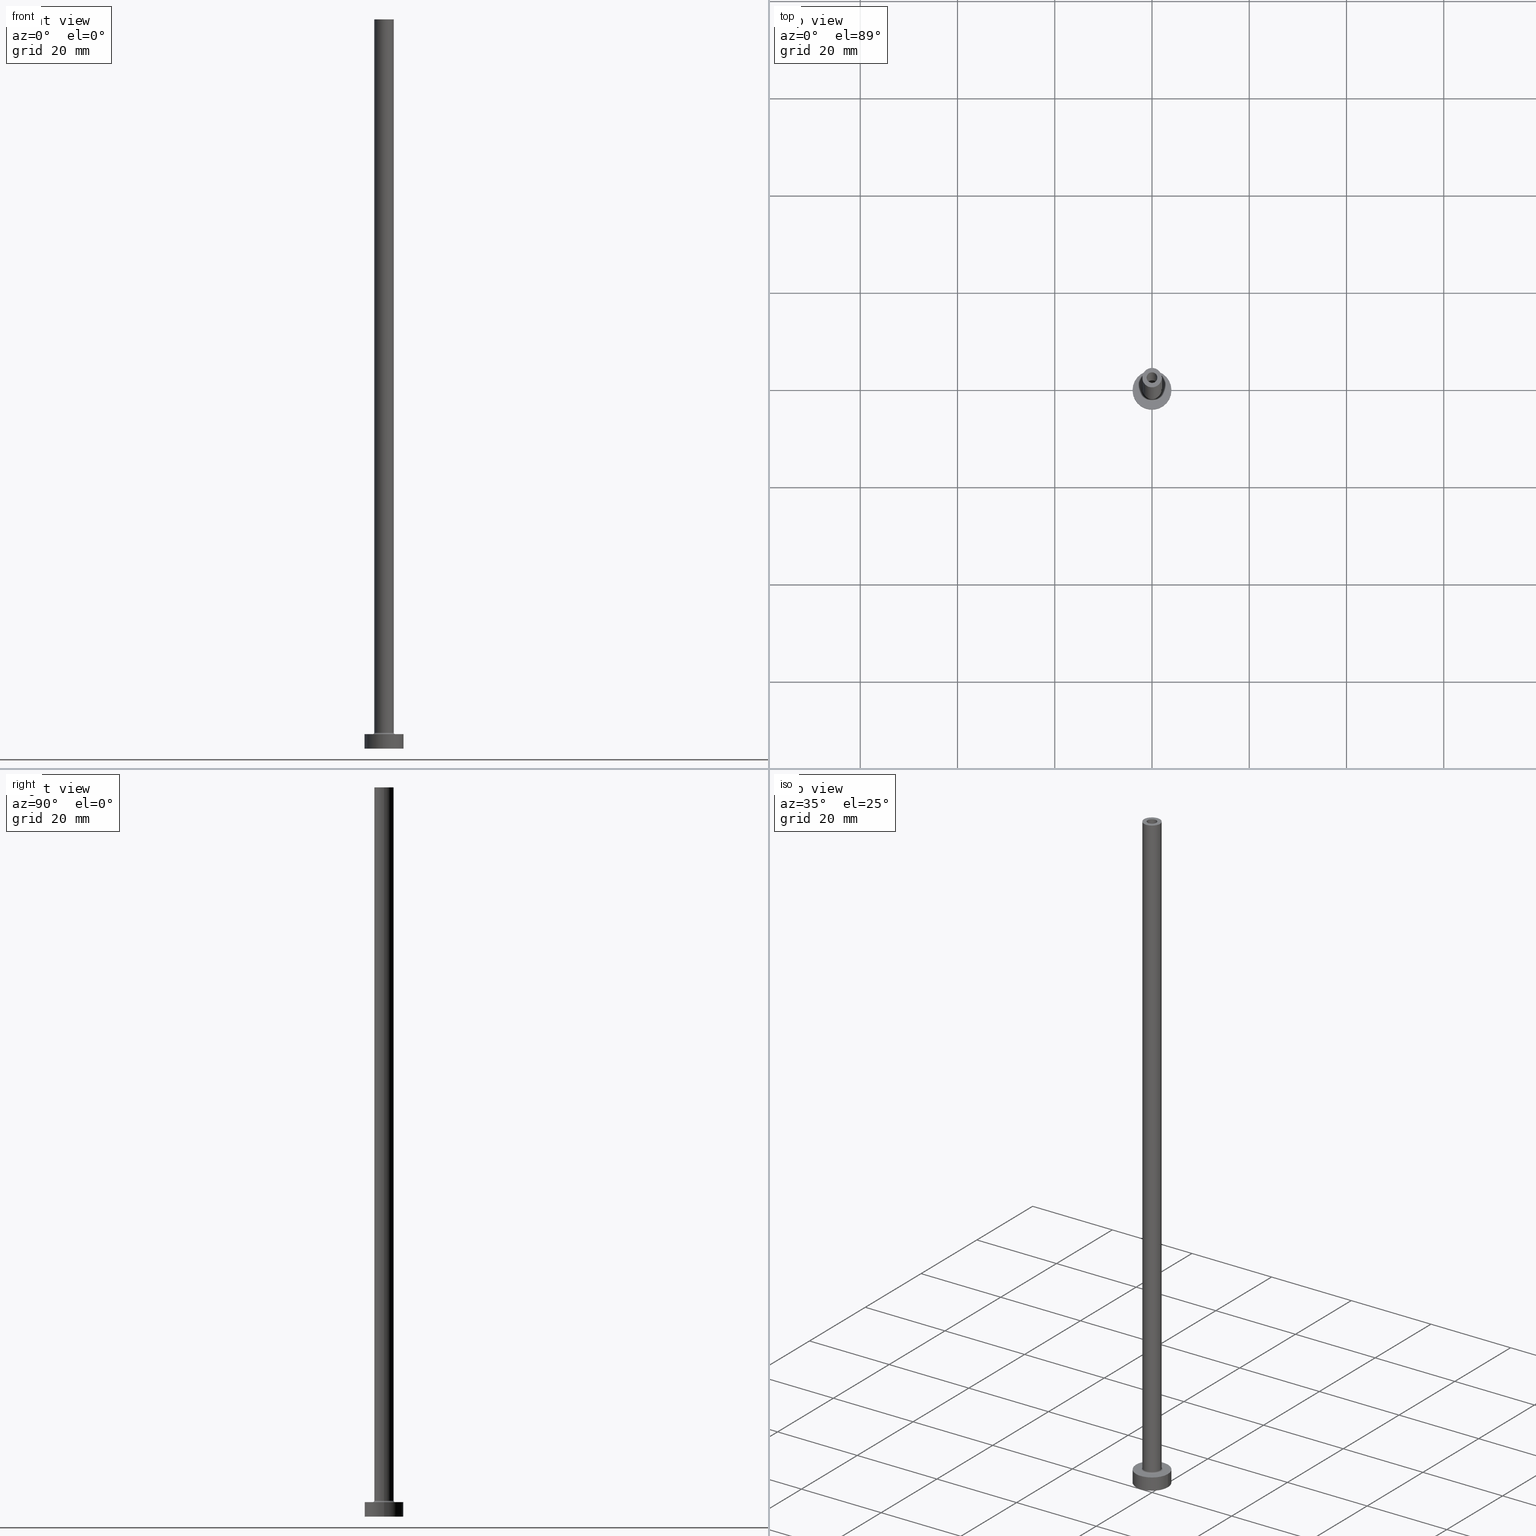
[diagram: canonical four-view strip — front | top / right | iso, engineering-drawing reading convention]
A machine part, canonical four-view strip (front | top / right | iso — engineering-drawing reading convention). The complete STEP part file that produces these views, byte-faithful:
ISO-10303-21;
HEADER;
FILE_DESCRIPTION (( 'STEP AP203' ),
    '1' );
FILE_NAME ('39bb.STEP',
    '2023-02-13T18:10:38',
    ( '' ),
    ( '' ),
    'SwSTEP 2.0',
    'SolidWorks 2019',
    '' );
FILE_SCHEMA (( 'CONFIG_CONTROL_DESIGN' ));
ENDSEC;

DATA;
#1 = EDGE_CURVE ( 'NONE', #459, #277, #3, .T. ) ;
#2 = AXIS2_PLACEMENT_3D ( 'NONE', #9, #287, #114 ) ;
#3 = LINE ( 'NONE', #67, #371 ) ;
#4 = CARTESIAN_POINT ( 'NONE',  ( 2.299999999999999822, 0.000000000000000000, 2.999999999999998668 ) ) ;
#5 = LINE ( 'NONE', #146, #202 ) ;
#6 = AXIS2_PLACEMENT_3D ( 'NONE', #116, #189, #187 ) ;
#7 = ORIENTED_EDGE ( 'NONE', *, *, #58, .T. ) ;
#8 = APPROVAL_ROLE ( '' ) ;
#9 = CARTESIAN_POINT ( 'NONE',  ( 0.000000000000000000, 0.000000000000000000, 3.000000000000000000 ) ) ;
#10 = CARTESIAN_POINT ( 'NONE',  ( 0.000000000000000000, 0.000000000000000000, 0.000000000000000000 ) ) ;
#11 = ORIENTED_EDGE ( 'NONE', *, *, #399, .T. ) ;
#12 = EDGE_CURVE ( 'NONE', #459, #448, #273, .T. ) ;
#13 = DIRECTION ( 'NONE',  ( 1.000000000000000000, 0.000000000000000000, 0.000000000000000000 ) ) ;
#14 = EDGE_LOOP ( 'NONE', ( #421, #225 ) ) ;
#15 = DIRECTION ( 'NONE',  ( 0.000000000000000000, 0.000000000000000000, 1.000000000000000000 ) ) ;
#16 = COORDINATED_UNIVERSAL_TIME_OFFSET ( 1, 0, .AHEAD. ) ;
#17 = ORIENTED_EDGE ( 'NONE', *, *, #399, .F. ) ;
#18 = VECTOR ( 'NONE', #347, 1000.000000000000000 ) ;
#19 = EDGE_CURVE ( 'NONE', #218, #312, #23, .T. ) ;
#20 = ORIENTED_EDGE ( 'NONE', *, *, #252, .F. ) ;
#21 = FACE_OUTER_BOUND ( 'NONE', #443, .T. ) ;
#22 = CARTESIAN_POINT ( 'NONE',  ( 0.000000000000000000, 0.000000000000000000, 3.000000000000000000 ) ) ;
#23 = LINE ( 'NONE', #270, #194 ) ;
#24 = CC_DESIGN_PERSON_AND_ORGANIZATION_ASSIGNMENT ( #428, #353, ( #423 ) ) ;
#25 = ORIENTED_EDGE ( 'NONE', *, *, #99, .F. ) ;
#26 = ORIENTED_EDGE ( 'NONE', *, *, #338, .F. ) ;
#27 = DATE_AND_TIME ( #55, #250 ) ;
#28 = CARTESIAN_POINT ( 'NONE',  ( 1.250000000000000000, 1.530808498934191571E-16, 118.5355339059327093 ) ) ;
#29 = ORIENTED_EDGE ( 'NONE', *, *, #364, .F. ) ;
#30 = APPROVAL_ROLE ( '' ) ;
#31 = PRODUCT_DEFINITION ( 'NEZN�M�', '', #49, #126 ) ;
#32 = CARTESIAN_POINT ( 'NONE',  ( -1.100000000000000089, 0.000000000000000000, 150.0000000000000000 ) ) ;
#33 = AXIS2_PLACEMENT_3D ( 'NONE', #420, #75, #210 ) ;
#34 = CYLINDRICAL_SURFACE ( 'NONE', #127, 4.000000000000000000 ) ;
#35 = ADVANCED_FACE ( 'NONE', ( #76, #354 ), #319, .T. ) ;
#36 = DIRECTION ( 'NONE',  ( -1.000000000000000000, 0.000000000000000000, 0.000000000000000000 ) ) ;
#37 = AXIS2_PLACEMENT_3D ( 'NONE', #22, #438, #228 ) ;
#38 = DIRECTION ( 'NONE',  ( 0.000000000000000000, 0.000000000000000000, -1.000000000000000000 ) ) ;
#39 = DIRECTION ( 'NONE',  ( 1.000000000000000000, 0.000000000000000000, -0.000000000000000000 ) ) ;
#40 = VECTOR ( 'NONE', #376, 1000.000000000000000 ) ;
#41 = ORIENTED_EDGE ( 'NONE', *, *, #295, .T. ) ;
#42 = AXIS2_PLACEMENT_3D ( 'NONE', #69, #98, #460 ) ;
#43 = DIRECTION ( 'NONE',  ( 1.224646799147353207E-16, 1.000000000000000000, -0.000000000000000000 ) ) ;
#44 = ORIENTED_EDGE ( 'NONE', *, *, #363, .F. ) ;
#45 = PERSON_AND_ORGANIZATION ( #344, #263 ) ;
#46 = EDGE_LOOP ( 'NONE', ( #313, #402, #201, #400 ) ) ;
#47 = DATE_TIME_ROLE ( 'creation_date' ) ;
#48 = DIRECTION ( 'NONE',  ( 0.000000000000000000, 0.000000000000000000, -1.000000000000000000 ) ) ;
#49 = PRODUCT_DEFINITION_FORMATION_WITH_SPECIFIED_SOURCE ( 'LIBOVOLN�', '', #423, .NOT_KNOWN. ) ;
#50 = EDGE_LOOP ( 'NONE', ( #25, #411 ) ) ;
#51 = PERSON_AND_ORGANIZATION ( #344, #263 ) ;
#52 = ORIENTED_EDGE ( 'NONE', *, *, #19, .T. ) ;
#53 = CARTESIAN_POINT ( 'NONE',  ( 2.000000000000000000, 2.449293598294706414E-16, 150.0000000000000000 ) ) ;
#54 = LINE ( 'NONE', #332, #109 ) ;
#55 = CALENDAR_DATE ( 2023, 13, 2 ) ;
#56 = CIRCLE ( 'NONE', #285, 2.000000000000000000 ) ;
#57 = PERSON_AND_ORGANIZATION_ROLE ( 'creator' ) ;
#58 = EDGE_CURVE ( 'NONE', #397, #158, #5, .T. ) ;
#59 = UNCERTAINTY_MEASURE_WITH_UNIT (LENGTH_MEASURE( 1.000000000000000082E-05 ), #81, 'distance_accuracy_value', 'NONE');
#60 = CIRCLE ( 'NONE', #304, 0.2999999999999999334 ) ;
#61 = DIRECTION ( 'NONE',  ( -0.000000000000000000, -0.000000000000000000, -1.000000000000000000 ) ) ;
#62 = EDGE_LOOP ( 'NONE', ( #296, #130, #242, #17 ) ) ;
#63 = DIRECTION ( 'NONE',  ( 1.000000000000000000, 0.000000000000000000, -0.000000000000000000 ) ) ;
#64 = AXIS2_PLACEMENT_3D ( 'NONE', #457, #111, #184 ) ;
#65 = CARTESIAN_POINT ( 'NONE',  ( 0.000000000000000000, 0.000000000000000000, 3.299999999999997158 ) ) ;
#66 = ADVANCED_FACE ( 'NONE', ( #396 ), #107, .F. ) ;
#67 = CARTESIAN_POINT ( 'NONE',  ( -1.250000000000000000, 0.000000000000000000, 118.5355339059327093 ) ) ;
#68 = PRODUCT_DEFINITION_SHAPE ( 'NONE', 'NONE',  #31 ) ;
#69 = CARTESIAN_POINT ( 'NONE',  ( 0.000000000000000000, 0.000000000000000000, 0.000000000000000000 ) ) ;
#70 = FACE_OUTER_BOUND ( 'NONE', #335, .T. ) ;
#71 = ORIENTED_EDGE ( 'NONE', *, *, #206, .F. ) ;
#72 = PLANE ( 'NONE',  #374 ) ;
#73 = CC_DESIGN_DATE_AND_TIME_ASSIGNMENT ( #318, #47, ( #31 ) ) ;
#74 = ORIENTED_EDGE ( 'NONE', *, *, #197, .T. ) ;
#75 = DIRECTION ( 'NONE',  ( 0.000000000000000000, 0.000000000000000000, 1.000000000000000000 ) ) ;
#76 = FACE_BOUND ( 'NONE', #129, .T. ) ;
#77 = CIRCLE ( 'NONE', #291, 1.250000000000000000 ) ;
#78 = AXIS2_PLACEMENT_3D ( 'NONE', #119, #223, #395 ) ;
#79 = DIRECTION ( 'NONE',  ( 0.000000000000000000, 0.000000000000000000, 1.000000000000000000 ) ) ;
#80 = DIRECTION ( 'NONE',  ( 1.000000000000000000, 0.000000000000000000, 0.000000000000000000 ) ) ;
#81 =( LENGTH_UNIT ( ) NAMED_UNIT ( * ) SI_UNIT ( .MILLI., .METRE. ) );
#82 = ORIENTED_EDGE ( 'NONE', *, *, #219, .T. ) ;
#83 = APPROVAL_DATE_TIME ( #110, #222 ) ;
#84 = EDGE_CURVE ( 'NONE', #455, #181, #233, .T. ) ;
#85 = APPLICATION_PROTOCOL_DEFINITION ( 'international standard', 'config_control_design', 1994, #446 ) ;
#86 = DIRECTION ( 'NONE',  ( 1.000000000000000000, 0.000000000000000000, 0.000000000000000000 ) ) ;
#87 = AXIS2_PLACEMENT_3D ( 'NONE', #404, #213, #331 ) ;
#88 = PERSON_AND_ORGANIZATION ( #344, #263 ) ;
#89 = EDGE_CURVE ( 'NONE', #293, #195, #141, .T. ) ;
#90 = AXIS2_PLACEMENT_3D ( 'NONE', #434, #326, #80 ) ;
#91 = CIRCLE ( 'NONE', #435, 1.100000000000000089 ) ;
#92 = ADVANCED_FACE ( 'NONE', ( #167 ), #207, .T. ) ;
#93 = EDGE_CURVE ( 'NONE', #312, #317, #122, .T. ) ;
#94 = CARTESIAN_POINT ( 'NONE',  ( 1.100000000000000089, 1.347111479062088503E-16, 150.0000000000000000 ) ) ;
#95 = DIRECTION ( 'NONE',  ( 0.000000000000000000, 0.000000000000000000, 1.000000000000000000 ) ) ;
#96 = ORIENTED_EDGE ( 'NONE', *, *, #165, .F. ) ;
#97 = ORIENTED_EDGE ( 'NONE', *, *, #408, .T. ) ;
#98 = DIRECTION ( 'NONE',  ( -0.000000000000000000, -0.000000000000000000, -1.000000000000000000 ) ) ;
#99 = EDGE_CURVE ( 'NONE', #317, #312, #382, .T. ) ;
#100 = CC_DESIGN_SECURITY_CLASSIFICATION ( #161, ( #49 ) ) ;
#101 = EDGE_LOOP ( 'NONE', ( #239, #44, #177, #144 ) ) ;
#102 = DIRECTION ( 'NONE',  ( 1.000000000000000000, 0.000000000000000000, 0.000000000000000000 ) ) ;
#103 = CC_DESIGN_PERSON_AND_ORGANIZATION_ASSIGNMENT ( #128, #437, ( #49 ) ) ;
#104 = EDGE_LOOP ( 'NONE', ( #142, #257, #180, #203 ) ) ;
#105 = DIRECTION ( 'NONE',  ( 0.000000000000000000, 0.000000000000000000, -1.000000000000000000 ) ) ;
#106 = DIRECTION ( 'NONE',  ( -0.000000000000000000, -0.000000000000000000, -1.000000000000000000 ) ) ;
#107 = TOROIDAL_SURFACE ( 'NONE', #64, 2.299999999999999822, 0.2999999999999999889 ) ;
#108 = CYLINDRICAL_SURFACE ( 'NONE', #78, 2.000000000000000000 ) ;
#109 = VECTOR ( 'NONE', #192, 1000.000000000000000 ) ;
#110 = DATE_AND_TIME ( #433, #300 ) ;
#111 = DIRECTION ( 'NONE',  ( 0.000000000000000000, 0.000000000000000000, 1.000000000000000000 ) ) ;
#112 = CARTESIAN_POINT ( 'NONE',  ( 0.000000000000000000, 0.000000000000000000, 114.9999999999999858 ) ) ;
#113 = DATE_AND_TIME ( #431, #427 ) ;
#114 = DIRECTION ( 'NONE',  ( 1.000000000000000000, 0.000000000000000000, 0.000000000000000000 ) ) ;
#115 = ORIENTED_EDGE ( 'NONE', *, *, #58, .F. ) ;
#116 = CARTESIAN_POINT ( 'NONE',  ( 0.000000000000000000, 0.000000000000000000, 150.0000000000000000 ) ) ;
#117 = EDGE_CURVE ( 'NONE', #195, #158, #416, .T. ) ;
#118 = CIRCLE ( 'NONE', #377, 1.250000000000000000 ) ;
#119 = CARTESIAN_POINT ( 'NONE',  ( 0.000000000000000000, 0.000000000000000000, 150.0000000000000000 ) ) ;
#120 = FACE_OUTER_BOUND ( 'NONE', #124, .T. ) ;
#121 = ORIENTED_EDGE ( 'NONE', *, *, #275, .T. ) ;
#122 = CIRCLE ( 'NONE', #412, 4.000000000000000000 ) ;
#123 = ADVANCED_FACE ( 'NONE', ( #375 ), #196, .T. ) ;
#124 = EDGE_LOOP ( 'NONE', ( #214, #414 ) ) ;
#125 = CARTESIAN_POINT ( 'NONE',  ( 0.000000000000000000, 0.000000000000000000, 114.9999999999999858 ) ) ;
#126 = DESIGN_CONTEXT ( 'detailed design', #446, 'design' ) ;
#127 = AXIS2_PLACEMENT_3D ( 'NONE', #315, #272, #136 ) ;
#128 = PERSON_AND_ORGANIZATION ( #344, #263 ) ;
#129 = EDGE_LOOP ( 'NONE', ( #322, #288 ) ) ;
#130 = ORIENTED_EDGE ( 'NONE', *, *, #206, .T. ) ;
#131 = CARTESIAN_POINT ( 'NONE',  ( -2.000000000000000000, 0.000000000000000000, 150.0000000000000000 ) ) ;
#132 = EDGE_CURVE ( 'NONE', #422, #244, #259, .T. ) ;
#133 = ORIENTED_EDGE ( 'NONE', *, *, #89, .F. ) ;
#134 = EDGE_CURVE ( 'NONE', #448, #451, #442, .T. ) ;
#135 = CARTESIAN_POINT ( 'NONE',  ( 2.000000000000000000, 2.449293598294706414E-16, 3.299999999999997158 ) ) ;
#136 = DIRECTION ( 'NONE',  ( -1.000000000000000000, 0.000000000000000000, 0.000000000000000000 ) ) ;
#137 = AXIS2_PLACEMENT_3D ( 'NONE', #316, #105, #36 ) ;
#138 = ORIENTED_EDGE ( 'NONE', *, *, #132, .T. ) ;
#139 = PLANE ( 'NONE',  #282 ) ;
#140 = DIRECTION ( 'NONE',  ( 0.000000000000000000, -1.000000000000000000, 0.000000000000000000 ) ) ;
#141 = LINE ( 'NONE', #216, #246 ) ;
#142 = ORIENTED_EDGE ( 'NONE', *, *, #12, .T. ) ;
#143 = CARTESIAN_POINT ( 'NONE',  ( -2.000000000000000000, 0.000000000000000000, 3.299999999999997158 ) ) ;
#144 = ORIENTED_EDGE ( 'NONE', *, *, #197, .F. ) ;
#145 =( NAMED_UNIT ( * ) SI_UNIT ( $, .STERADIAN. ) SOLID_ANGLE_UNIT ( ) );
#146 = CARTESIAN_POINT ( 'NONE',  ( -1.100000000000000089, 0.000000000000000000, 150.0000000000000000 ) ) ;
#147 = CIRCLE ( 'NONE', #6, 1.100000000000000089 ) ;
#148 = TOROIDAL_SURFACE ( 'NONE', #157, 2.299999999999999822, 0.2999999999999999889 ) ;
#149 = COORDINATED_UNIVERSAL_TIME_OFFSET ( 1, 0, .AHEAD. ) ;
#150 = DIRECTION ( 'NONE',  ( 0.000000000000000000, 0.000000000000000000, 1.000000000000000000 ) ) ;
#151 = DIRECTION ( 'NONE',  ( -0.000000000000000000, -0.000000000000000000, -1.000000000000000000 ) ) ;
#152 = CARTESIAN_POINT ( 'NONE',  ( 1.250000000000000000, 1.530808498934191571E-16, 114.9999999999999858 ) ) ;
#153 = CARTESIAN_POINT ( 'NONE',  ( 0.000000000000000000, 0.000000000000000000, 3.000000000000000000 ) ) ;
#154 = DIRECTION ( 'NONE',  ( 1.000000000000000000, 0.000000000000000000, 0.000000000000000000 ) ) ;
#155 = CARTESIAN_POINT ( 'NONE',  ( 1.250000000000000000, 1.530808498934191571E-16, 0.000000000000000000 ) ) ;
#156 = ADVANCED_FACE ( 'NONE', ( #166, #302 ), #306, .F. ) ;
#157 = AXIS2_PLACEMENT_3D ( 'NONE', #65, #204, #339 ) ;
#158 = VERTEX_POINT ( 'NONE', #255 ) ;
#159 = APPROVAL_DATE_TIME ( #27, #380 ) ;
#160 = FACE_BOUND ( 'NONE', #419, .T. ) ;
#161 = SECURITY_CLASSIFICATION ( '', '', #298 ) ;
#162 = ORIENTED_EDGE ( 'NONE', *, *, #310, .T. ) ;
#163 = CARTESIAN_POINT ( 'NONE',  ( 0.000000000000000000, 0.000000000000000000, 150.0000000000000000 ) ) ;
#164 = EDGE_LOOP ( 'NONE', ( #20, #96 ) ) ;
#165 = EDGE_CURVE ( 'NONE', #451, #277, #77, .T. ) ;
#166 = FACE_BOUND ( 'NONE', #274, .T. ) ;
#167 = FACE_OUTER_BOUND ( 'NONE', #454, .T. ) ;
#168 = AXIS2_PLACEMENT_3D ( 'NONE', #174, #308, #173 ) ;
#169 = CARTESIAN_POINT ( 'NONE',  ( -2.000000000000000000, 0.000000000000000000, 150.0000000000000000 ) ) ;
#170 = EDGE_CURVE ( 'NONE', #218, #231, #299, .T. ) ;
#171 = EDGE_LOOP ( 'NONE', ( #432, #162, #340, #418 ) ) ;
#172 = FACE_OUTER_BOUND ( 'NONE', #104, .T. ) ;
#173 = DIRECTION ( 'NONE',  ( 1.000000000000000000, 0.000000000000000000, 0.000000000000000000 ) ) ;
#174 = CARTESIAN_POINT ( 'NONE',  ( 0.000000000000000000, 0.000000000000000000, 150.0000000000000000 ) ) ;
#175 = AXIS2_PLACEMENT_3D ( 'NONE', #426, #150, #391 ) ;
#176 = DIRECTION ( 'NONE',  ( 1.000000000000000000, 0.000000000000000000, 0.000000000000000000 ) ) ;
#177 = ORIENTED_EDGE ( 'NONE', *, *, #378, .T. ) ;
#178 = DIRECTION ( 'NONE',  ( 1.000000000000000000, 0.000000000000000000, 0.000000000000000000 ) ) ;
#179 = LINE ( 'NONE', #131, #386 ) ;
#180 = ORIENTED_EDGE ( 'NONE', *, *, #165, .T. ) ;
#181 = VERTEX_POINT ( 'NONE', #367 ) ;
#182 = CALENDAR_DATE ( 2023, 13, 2 ) ;
#183 = COORDINATED_UNIVERSAL_TIME_OFFSET ( 1, 0, .AHEAD. ) ;
#184 = DIRECTION ( 'NONE',  ( 1.000000000000000000, 0.000000000000000000, 0.000000000000000000 ) ) ;
#185 = CARTESIAN_POINT ( 'NONE',  ( 0.000000000000000000, 0.000000000000000000, 114.9999999999999858 ) ) ;
#186 = CIRCLE ( 'NONE', #441, 2.000000000000000000 ) ;
#187 = DIRECTION ( 'NONE',  ( 1.000000000000000000, 0.000000000000000000, 0.000000000000000000 ) ) ;
#188 = APPROVAL_STATUS ( 'not_yet_approved' ) ;
#189 = DIRECTION ( 'NONE',  ( 0.000000000000000000, 0.000000000000000000, 1.000000000000000000 ) ) ;
#190 = CARTESIAN_POINT ( 'NONE',  ( 0.000000000000000000, 0.000000000000000000, 150.0000000000000000 ) ) ;
#191 = APPROVAL_PERSON_ORGANIZATION ( #283, #447, #8 ) ;
#192 = DIRECTION ( 'NONE',  ( -0.000000000000000000, -0.000000000000000000, -1.000000000000000000 ) ) ;
#193 = PERSON_AND_ORGANIZATION ( #344, #263 ) ;
#194 = VECTOR ( 'NONE', #106, 1000.000000000000000 ) ;
#195 = VERTEX_POINT ( 'NONE', #254 ) ;
#196 = CYLINDRICAL_SURFACE ( 'NONE', #453, 2.000000000000000000 ) ;
#197 = EDGE_CURVE ( 'NONE', #181, #455, #329, .T. ) ;
#198 = AXIS2_PLACEMENT_3D ( 'NONE', #190, #48, #280 ) ;
#199 = CARTESIAN_POINT ( 'NONE',  ( 0.000000000000000000, 0.000000000000000000, 0.000000000000000000 ) ) ;
#200 = DIRECTION ( 'NONE',  ( -1.000000000000000000, 0.000000000000000000, 0.000000000000000000 ) ) ;
#201 = ORIENTED_EDGE ( 'NONE', *, *, #84, .F. ) ;
#202 = VECTOR ( 'NONE', #429, 1000.000000000000000 ) ;
#203 = ORIENTED_EDGE ( 'NONE', *, *, #1, .F. ) ;
#204 = DIRECTION ( 'NONE',  ( 0.000000000000000000, 0.000000000000000000, 1.000000000000000000 ) ) ;
#205 = ADVANCED_FACE ( 'NONE', ( #21 ), #327, .F. ) ;
#206 = EDGE_CURVE ( 'NONE', #422, #356, #54, .T. ) ;
#207 = CYLINDRICAL_SURFACE ( 'NONE', #37, 4.000000000000000000 ) ;
#208 = CC_DESIGN_APPROVAL ( #380, ( #161 ) ) ;
#209 = DIRECTION ( 'NONE',  ( -1.000000000000000000, 0.000000000000000000, 0.000000000000000000 ) ) ;
#210 = DIRECTION ( 'NONE',  ( 1.000000000000000000, 0.000000000000000000, 0.000000000000000000 ) ) ;
#211 = EDGE_LOOP ( 'NONE', ( #71, #29, #11, #97 ) ) ;
#212 = CARTESIAN_POINT ( 'NONE',  ( -4.000000000000000000, 0.000000000000000000, 0.000000000000000000 ) ) ;
#213 = DIRECTION ( 'NONE',  ( 0.000000000000000000, 0.000000000000000000, -1.000000000000000000 ) ) ;
#214 = ORIENTED_EDGE ( 'NONE', *, *, #338, .T. ) ;
#215 = CARTESIAN_POINT ( 'NONE',  ( -4.000000000000000000, 0.000000000000000000, 3.000000000000000000 ) ) ;
#216 = CARTESIAN_POINT ( 'NONE',  ( 1.100000000000000089, 1.347111479062088503E-16, 150.0000000000000000 ) ) ;
#217 = AXIS2_PLACEMENT_3D ( 'NONE', #387, #456, #247 ) ;
#218 = VERTEX_POINT ( 'NONE', #385 ) ;
#219 = EDGE_CURVE ( 'NONE', #293, #397, #372, .T. ) ;
#220 = APPLICATION_PROTOCOL_DEFINITION ( 'international standard', 'config_control_design', 1994, #379 ) ;
#221 = AXIS2_PLACEMENT_3D ( 'NONE', #125, #407, #232 ) ;
#222 = APPROVAL ( #188, 'NEUR�EN�' ) ;
#223 = DIRECTION ( 'NONE',  ( -0.000000000000000000, -0.000000000000000000, -1.000000000000000000 ) ) ;
#224 = ADVANCED_FACE ( 'NONE', ( #160, #120 ), #139, .T. ) ;
#225 = ORIENTED_EDGE ( 'NONE', *, *, #310, .F. ) ;
#226 = CARTESIAN_POINT ( 'NONE',  ( -4.000000000000000000, 0.000000000000000000, 3.000000000000000000 ) ) ;
#227 = APPROVAL_ROLE ( '' ) ;
#228 = DIRECTION ( 'NONE',  ( -1.000000000000000000, 0.000000000000000000, 0.000000000000000000 ) ) ;
#229 = LOCAL_TIME ( 19, 10, 38.00000000000000000, #439 ) ;
#230 = PERSON_AND_ORGANIZATION_ROLE ( 'classification_officer' ) ;
#231 = VERTEX_POINT ( 'NONE', #226 ) ;
#232 = DIRECTION ( 'NONE',  ( 1.000000000000000000, 0.000000000000000000, 0.000000000000000000 ) ) ;
#233 = CIRCLE ( 'NONE', #2, 2.299999999999999822 ) ;
#234 = ADVANCED_FACE ( 'NONE', ( #346 ), #440, .F. ) ;
#235 = CARTESIAN_POINT ( 'NONE',  ( 0.000000000000000000, 0.000000000000000000, 150.0000000000000000 ) ) ;
#236 = PRODUCT_RELATED_PRODUCT_CATEGORY ( 'detail', '', ( #423 ) ) ;
#237 = AXIS2_PLACEMENT_3D ( 'NONE', #163, #301, #337 ) ;
#238 = CIRCLE ( 'NONE', #33, 4.000000000000000000 ) ;
#239 = ORIENTED_EDGE ( 'NONE', *, *, #384, .F. ) ;
#240 = LINE ( 'NONE', #215, #18 ) ;
#241 = FACE_BOUND ( 'NONE', #164, .T. ) ;
#242 = ORIENTED_EDGE ( 'NONE', *, *, #363, .T. ) ;
#243 = CARTESIAN_POINT ( 'NONE',  ( 0.000000000000000000, 0.000000000000000000, 3.299999999999997158 ) ) ;
#244 = VERTEX_POINT ( 'NONE', #169 ) ;
#245 = DIRECTION ( 'NONE',  ( 0.000000000000000000, 0.000000000000000000, -1.000000000000000000 ) ) ;
#246 = VECTOR ( 'NONE', #413, 1000.000000000000000 ) ;
#247 = DIRECTION ( 'NONE',  ( 1.000000000000000000, 0.000000000000000000, 0.000000000000000000 ) ) ;
#248 = ORIENTED_EDGE ( 'NONE', *, *, #170, .F. ) ;
#249 = DIRECTION ( 'NONE',  ( 1.000000000000000000, 0.000000000000000000, -0.000000000000000000 ) ) ;
#250 = LOCAL_TIME ( 19, 10, 38.00000000000000000, #261 ) ;
#251 = DIRECTION ( 'NONE',  ( 0.000000000000000000, 0.000000000000000000, 1.000000000000000000 ) ) ;
#252 = EDGE_CURVE ( 'NONE', #277, #451, #262, .T. ) ;
#253 =( NAMED_UNIT ( * ) PLANE_ANGLE_UNIT ( ) SI_UNIT ( $, .RADIAN. ) );
#254 = CARTESIAN_POINT ( 'NONE',  ( 1.100000000000000089, 1.347111479062088503E-16, 114.9999999999999858 ) ) ;
#255 = CARTESIAN_POINT ( 'NONE',  ( -1.100000000000000089, 0.000000000000000000, 114.9999999999999858 ) ) ;
#256 = APPROVAL_DATE_TIME ( #113, #447 ) ;
#257 = ORIENTED_EDGE ( 'NONE', *, *, #134, .T. ) ;
#258 = CARTESIAN_POINT ( 'NONE',  ( 0.000000000000000000, 0.000000000000000000, 0.000000000000000000 ) ) ;
#259 = CIRCLE ( 'NONE', #237, 2.000000000000000000 ) ;
#260 = ORIENTED_EDGE ( 'NONE', *, *, #19, .F. ) ;
#261 = COORDINATED_UNIVERSAL_TIME_OFFSET ( 1, 0, .AHEAD. ) ;
#262 = CIRCLE ( 'NONE', #42, 1.250000000000000000 ) ;
#263 = ORGANIZATION ( 'NEUR�EN�', 'NEUR�EN�', '' ) ;
#264 = APPROVAL_STATUS ( 'not_yet_approved' ) ;
#265 = ADVANCED_FACE ( 'NONE', ( #172 ), #383, .F. ) ;
#266 = ADVANCED_BREP_SHAPE_REPRESENTATION ( '39bb', ( #289, #330 ), #271 ) ;
#267 = DATE_TIME_ROLE ( 'classification_date' ) ;
#268 = CC_DESIGN_DATE_AND_TIME_ASSIGNMENT ( #294, #267, ( #161 ) ) ;
#269 = VERTEX_POINT ( 'NONE', #143 ) ;
#270 = CARTESIAN_POINT ( 'NONE',  ( 4.000000000000000000, 4.898587196589412829E-16, 3.000000000000000000 ) ) ;
#271 =( GEOMETRIC_REPRESENTATION_CONTEXT ( 3 ) GLOBAL_UNCERTAINTY_ASSIGNED_CONTEXT ( ( #59 ) ) GLOBAL_UNIT_ASSIGNED_CONTEXT ( ( #81, #253, #145 ) ) REPRESENTATION_CONTEXT ( 'NONE', 'WORKASPACE' ) );
#272 = DIRECTION ( 'NONE',  ( -0.000000000000000000, -0.000000000000000000, -1.000000000000000000 ) ) ;
#273 = CIRCLE ( 'NONE', #303, 1.250000000000000000 ) ;
#274 = EDGE_LOOP ( 'NONE', ( #121, #369 ) ) ;
#275 = EDGE_CURVE ( 'NONE', #158, #195, #91, .T. ) ;
#276 = CARTESIAN_POINT ( 'NONE',  ( 0.000000000000000000, 0.000000000000000000, 0.000000000000000000 ) ) ;
#277 = VERTEX_POINT ( 'NONE', #343 ) ;
#278 = FACE_OUTER_BOUND ( 'NONE', #171, .T. ) ;
#279 = CARTESIAN_POINT ( 'NONE',  ( -2.299999999999999822, 2.816687638038912056E-16, 3.299999999999997158 ) ) ;
#280 = DIRECTION ( 'NONE',  ( -1.000000000000000000, 0.000000000000000000, 0.000000000000000000 ) ) ;
#281 = ORIENTED_EDGE ( 'NONE', *, *, #275, .F. ) ;
#282 = AXIS2_PLACEMENT_3D ( 'NONE', #334, #373, #63 ) ;
#283 = PERSON_AND_ORGANIZATION ( #344, #263 ) ;
#284 = AXIS2_PLACEMENT_3D ( 'NONE', #185, #321, #249 ) ;
#285 = AXIS2_PLACEMENT_3D ( 'NONE', #243, #350, #178 ) ;
#286 = EDGE_LOOP ( 'NONE', ( #388, #138 ) ) ;
#287 = DIRECTION ( 'NONE',  ( -0.000000000000000000, -0.000000000000000000, -1.000000000000000000 ) ) ;
#288 = ORIENTED_EDGE ( 'NONE', *, *, #219, .F. ) ;
#289 = MANIFOLD_SOLID_BREP ( 'Odebrat vysunut�m4', #405 ) ;
#290 = DIRECTION ( 'NONE',  ( 1.000000000000000000, 0.000000000000000000, 0.000000000000000000 ) ) ;
#291 = AXIS2_PLACEMENT_3D ( 'NONE', #10, #151, #13 ) ;
#292 = CIRCLE ( 'NONE', #217, 2.000000000000000000 ) ;
#293 = VERTEX_POINT ( 'NONE', #94 ) ;
#294 = DATE_AND_TIME ( #336, #229 ) ;
#295 = EDGE_CURVE ( 'NONE', #231, #317, #240, .T. ) ;
#296 = ORIENTED_EDGE ( 'NONE', *, *, #132, .F. ) ;
#297 = CARTESIAN_POINT ( 'NONE',  ( 0.000000000000000000, 0.000000000000000000, 0.000000000000000000 ) ) ;
#298 = SECURITY_CLASSIFICATION_LEVEL ( 'unclassified' ) ;
#299 = CIRCLE ( 'NONE', #360, 4.000000000000000000 ) ;
#300 = LOCAL_TIME ( 19, 10, 38.00000000000000000, #183 ) ;
#301 = DIRECTION ( 'NONE',  ( 0.000000000000000000, 0.000000000000000000, 1.000000000000000000 ) ) ;
#302 = FACE_OUTER_BOUND ( 'NONE', #14, .T. ) ;
#303 = AXIS2_PLACEMENT_3D ( 'NONE', #112, #359, #86 ) ;
#304 = AXIS2_PLACEMENT_3D ( 'NONE', #381, #140, #305 ) ;
#305 = DIRECTION ( 'NONE',  ( 0.000000000000000000, 0.000000000000000000, -1.000000000000000000 ) ) ;
#306 = PLANE ( 'NONE',  #284 ) ;
#307 = CARTESIAN_POINT ( 'NONE',  ( 0.000000000000000000, 0.000000000000000000, 114.9999999999999858 ) ) ;
#308 = DIRECTION ( 'NONE',  ( 0.000000000000000000, 0.000000000000000000, 1.000000000000000000 ) ) ;
#309 = ORIENTED_EDGE ( 'NONE', *, *, #84, .T. ) ;
#310 = EDGE_CURVE ( 'NONE', #448, #459, #118, .T. ) ;
#311 = CARTESIAN_POINT ( 'NONE',  ( 4.000000000000000000, 4.898587196589412829E-16, 0.000000000000000000 ) ) ;
#312 = VERTEX_POINT ( 'NONE', #311 ) ;
#313 = ORIENTED_EDGE ( 'NONE', *, *, #408, .F. ) ;
#314 = LOCAL_TIME ( 19, 10, 38.00000000000000000, #16 ) ;
#315 = CARTESIAN_POINT ( 'NONE',  ( 0.000000000000000000, 0.000000000000000000, 3.000000000000000000 ) ) ;
#316 = CARTESIAN_POINT ( 'NONE',  ( 0.000000000000000000, 0.000000000000000000, 118.5355339059327093 ) ) ;
#317 = VERTEX_POINT ( 'NONE', #212 ) ;
#318 = DATE_AND_TIME ( #182, #314 ) ;
#319 = PLANE ( 'NONE',  #175 ) ;
#320 = APPROVAL_STATUS ( 'not_yet_approved' ) ;
#321 = DIRECTION ( 'NONE',  ( 0.000000000000000000, 0.000000000000000000, 1.000000000000000000 ) ) ;
#322 = ORIENTED_EDGE ( 'NONE', *, *, #430, .F. ) ;
#323 = FACE_OUTER_BOUND ( 'NONE', #211, .T. ) ;
#324 = ADVANCED_FACE ( 'NONE', ( #70 ), #34, .T. ) ;
#325 = PERSON_AND_ORGANIZATION_ROLE ( 'creator' ) ;
#326 = DIRECTION ( 'NONE',  ( -0.000000000000000000, -0.000000000000000000, -1.000000000000000000 ) ) ;
#327 = CYLINDRICAL_SURFACE ( 'NONE', #87, 1.100000000000000089 ) ;
#328 = DIRECTION ( 'NONE',  ( 1.000000000000000000, 0.000000000000000000, 0.000000000000000000 ) ) ;
#329 = CIRCLE ( 'NONE', #90, 2.299999999999999822 ) ;
#330 = AXIS2_PLACEMENT_3D ( 'NONE', #258, #79, #394 ) ;
#331 = DIRECTION ( 'NONE',  ( -1.000000000000000000, 0.000000000000000000, 0.000000000000000000 ) ) ;
#332 = CARTESIAN_POINT ( 'NONE',  ( 2.000000000000000000, 2.449293598294706414E-16, 150.0000000000000000 ) ) ;
#333 = PERSON_AND_ORGANIZATION ( #344, #263 ) ;
#334 = CARTESIAN_POINT ( 'NONE',  ( 0.000000000000000000, 0.000000000000000000, 3.000000000000000000 ) ) ;
#335 = EDGE_LOOP ( 'NONE', ( #260, #26, #41, #365 ) ) ;
#336 = CALENDAR_DATE ( 2023, 13, 2 ) ;
#337 = DIRECTION ( 'NONE',  ( 1.000000000000000000, 0.000000000000000000, 0.000000000000000000 ) ) ;
#338 = EDGE_CURVE ( 'NONE', #231, #218, #238, .T. ) ;
#339 = DIRECTION ( 'NONE',  ( 1.000000000000000000, 0.000000000000000000, 0.000000000000000000 ) ) ;
#340 = ORIENTED_EDGE ( 'NONE', *, *, #1, .T. ) ;
#341 = APPROVAL_PERSON_ORGANIZATION ( #88, #380, #30 ) ;
#342 = APPROVAL_PERSON_ORGANIZATION ( #51, #222, #227 ) ;
#343 = CARTESIAN_POINT ( 'NONE',  ( -1.250000000000000000, 0.000000000000000000, 0.000000000000000000 ) ) ;
#344 = PERSON ( 'NEUR�EN�', 'NEUR�EN�', 'NEUR�EN�', ('NEUR�EN�'), ('NEUR�EN�'), ('NEUR�EN�') ) ;
#345 = CARTESIAN_POINT ( 'NONE',  ( 0.000000000000000000, 0.000000000000000000, 114.9999999999999858 ) ) ;
#346 = FACE_OUTER_BOUND ( 'NONE', #406, .T. ) ;
#347 = DIRECTION ( 'NONE',  ( -0.000000000000000000, -0.000000000000000000, -1.000000000000000000 ) ) ;
#348 = ADVANCED_FACE ( 'NONE', ( #278 ), #415, .F. ) ;
#349 = CIRCLE ( 'NONE', #362, 0.2999999999999999334 ) ;
#350 = DIRECTION ( 'NONE',  ( 0.000000000000000000, 0.000000000000000000, 1.000000000000000000 ) ) ;
#351 = ORIENTED_EDGE ( 'NONE', *, *, #430, .T. ) ;
#352 = ORIENTED_EDGE ( 'NONE', *, *, #295, .F. ) ;
#353 = PERSON_AND_ORGANIZATION_ROLE ( 'design_owner' ) ;
#354 = FACE_OUTER_BOUND ( 'NONE', #286, .T. ) ;
#355 = AXIS2_PLACEMENT_3D ( 'NONE', #297, #403, #328 ) ;
#356 = VERTEX_POINT ( 'NONE', #135 ) ;
#357 = DIRECTION ( 'NONE',  ( 0.000000000000000000, 0.000000000000000000, 1.000000000000000000 ) ) ;
#358 = ADVANCED_FACE ( 'NONE', ( #241, #389 ), #72, .F. ) ;
#359 = DIRECTION ( 'NONE',  ( 0.000000000000000000, 0.000000000000000000, 1.000000000000000000 ) ) ;
#360 = AXIS2_PLACEMENT_3D ( 'NONE', #153, #251, #290 ) ;
#361 = DIRECTION ( 'NONE',  ( -0.000000000000000000, -0.000000000000000000, -1.000000000000000000 ) ) ;
#362 = AXIS2_PLACEMENT_3D ( 'NONE', #279, #43, #424 ) ;
#363 = EDGE_CURVE ( 'NONE', #356, #269, #56, .T. ) ;
#364 = EDGE_CURVE ( 'NONE', #244, #422, #292, .T. ) ;
#365 = ORIENTED_EDGE ( 'NONE', *, *, #99, .T. ) ;
#366 = CARTESIAN_POINT ( 'NONE',  ( -1.250000000000000000, 0.000000000000000000, 114.9999999999999858 ) ) ;
#367 = CARTESIAN_POINT ( 'NONE',  ( -2.299999999999999822, 2.816687638038912056E-16, 2.999999999999998668 ) ) ;
#368 = CC_DESIGN_PERSON_AND_ORGANIZATION_ASSIGNMENT ( #333, #230, ( #161 ) ) ;
#369 = ORIENTED_EDGE ( 'NONE', *, *, #117, .T. ) ;
#370 = DIRECTION ( 'NONE',  ( 1.000000000000000000, 0.000000000000000000, 0.000000000000000000 ) ) ;
#371 = VECTOR ( 'NONE', #38, 1000.000000000000000 ) ;
#372 = CIRCLE ( 'NONE', #168, 1.100000000000000089 ) ;
#373 = DIRECTION ( 'NONE',  ( 0.000000000000000000, 0.000000000000000000, 1.000000000000000000 ) ) ;
#374 = AXIS2_PLACEMENT_3D ( 'NONE', #276, #417, #39 ) ;
#375 = FACE_OUTER_BOUND ( 'NONE', #62, .T. ) ;
#376 = DIRECTION ( 'NONE',  ( 0.000000000000000000, 0.000000000000000000, -1.000000000000000000 ) ) ;
#377 = AXIS2_PLACEMENT_3D ( 'NONE', #345, #452, #176 ) ;
#378 = EDGE_CURVE ( 'NONE', #356, #455, #60, .T. ) ;
#379 = APPLICATION_CONTEXT ( 'configuration controlled 3d designs of mechanical parts and assemblies' ) ;
#380 = APPROVAL ( #264, 'NEUR�EN�' ) ;
#381 = CARTESIAN_POINT ( 'NONE',  ( 2.299999999999999822, 0.000000000000000000, 3.299999999999997158 ) ) ;
#382 = CIRCLE ( 'NONE', #355, 4.000000000000000000 ) ;
#383 = CYLINDRICAL_SURFACE ( 'NONE', #137, 1.250000000000000000 ) ;
#384 = EDGE_CURVE ( 'NONE', #269, #181, #349, .T. ) ;
#385 = CARTESIAN_POINT ( 'NONE',  ( 4.000000000000000000, 4.898587196589412829E-16, 3.000000000000000000 ) ) ;
#386 = VECTOR ( 'NONE', #361, 1000.000000000000000 ) ;
#387 = CARTESIAN_POINT ( 'NONE',  ( 0.000000000000000000, 0.000000000000000000, 150.0000000000000000 ) ) ;
#388 = ORIENTED_EDGE ( 'NONE', *, *, #364, .T. ) ;
#389 = FACE_OUTER_BOUND ( 'NONE', #50, .T. ) ;
#390 = FACE_OUTER_BOUND ( 'NONE', #101, .T. ) ;
#391 = DIRECTION ( 'NONE',  ( 1.000000000000000000, 0.000000000000000000, -0.000000000000000000 ) ) ;
#392 = ADVANCED_FACE ( 'NONE', ( #390 ), #148, .F. ) ;
#393 = CC_DESIGN_APPROVAL ( #222, ( #31 ) ) ;
#394 = DIRECTION ( 'NONE',  ( 1.000000000000000000, 0.000000000000000000, 0.000000000000000000 ) ) ;
#395 = DIRECTION ( 'NONE',  ( -1.000000000000000000, 0.000000000000000000, 0.000000000000000000 ) ) ;
#396 = FACE_OUTER_BOUND ( 'NONE', #46, .T. ) ;
#397 = VERTEX_POINT ( 'NONE', #32 ) ;
#398 = CARTESIAN_POINT ( 'NONE',  ( 0.000000000000000000, 0.000000000000000000, 3.299999999999997158 ) ) ;
#399 = EDGE_CURVE ( 'NONE', #244, #269, #179, .T. ) ;
#400 = ORIENTED_EDGE ( 'NONE', *, *, #378, .F. ) ;
#401 = CC_DESIGN_PERSON_AND_ORGANIZATION_ASSIGNMENT ( #45, #325, ( #31 ) ) ;
#402 = ORIENTED_EDGE ( 'NONE', *, *, #384, .T. ) ;
#403 = DIRECTION ( 'NONE',  ( 0.000000000000000000, 0.000000000000000000, 1.000000000000000000 ) ) ;
#404 = CARTESIAN_POINT ( 'NONE',  ( 0.000000000000000000, 0.000000000000000000, 150.0000000000000000 ) ) ;
#405 = CLOSED_SHELL ( 'NONE', ( #234, #265, #66, #123, #92, #324, #224, #358, #458, #35, #392, #348, #156, #205 ) ) ;
#406 = EDGE_LOOP ( 'NONE', ( #351, #445, #281, #115 ) ) ;
#407 = DIRECTION ( 'NONE',  ( 0.000000000000000000, 0.000000000000000000, 1.000000000000000000 ) ) ;
#408 = EDGE_CURVE ( 'NONE', #269, #356, #186, .T. ) ;
#409 = CC_DESIGN_APPROVAL ( #447, ( #49 ) ) ;
#410 = SHAPE_DEFINITION_REPRESENTATION ( #68, #266 ) ;
#411 = ORIENTED_EDGE ( 'NONE', *, *, #93, .F. ) ;
#412 = AXIS2_PLACEMENT_3D ( 'NONE', #199, #15, #154 ) ;
#413 = DIRECTION ( 'NONE',  ( 0.000000000000000000, 0.000000000000000000, -1.000000000000000000 ) ) ;
#414 = ORIENTED_EDGE ( 'NONE', *, *, #170, .T. ) ;
#415 = CYLINDRICAL_SURFACE ( 'NONE', #444, 1.250000000000000000 ) ;
#416 = CIRCLE ( 'NONE', #221, 1.100000000000000089 ) ;
#417 = DIRECTION ( 'NONE',  ( 0.000000000000000000, 0.000000000000000000, 1.000000000000000000 ) ) ;
#418 = ORIENTED_EDGE ( 'NONE', *, *, #252, .T. ) ;
#419 = EDGE_LOOP ( 'NONE', ( #309, #74 ) ) ;
#420 = CARTESIAN_POINT ( 'NONE',  ( 0.000000000000000000, 0.000000000000000000, 3.000000000000000000 ) ) ;
#421 = ORIENTED_EDGE ( 'NONE', *, *, #12, .F. ) ;
#422 = VERTEX_POINT ( 'NONE', #53 ) ;
#423 = PRODUCT ( '39bb', '39bb', '', ( #425 ) ) ;
#424 = DIRECTION ( 'NONE',  ( -1.000000000000000000, 1.224646799147353207E-16, 0.000000000000000000 ) ) ;
#425 = MECHANICAL_CONTEXT ( 'NONE', #379, 'mechanical' ) ;
#426 = CARTESIAN_POINT ( 'NONE',  ( 0.000000000000000000, 0.000000000000000000, 150.0000000000000000 ) ) ;
#427 = LOCAL_TIME ( 19, 10, 38.00000000000000000, #149 ) ;
#428 = PERSON_AND_ORGANIZATION ( #344, #263 ) ;
#429 = DIRECTION ( 'NONE',  ( 0.000000000000000000, 0.000000000000000000, -1.000000000000000000 ) ) ;
#430 = EDGE_CURVE ( 'NONE', #397, #293, #147, .T. ) ;
#431 = CALENDAR_DATE ( 2023, 13, 2 ) ;
#432 = ORIENTED_EDGE ( 'NONE', *, *, #134, .F. ) ;
#433 = CALENDAR_DATE ( 2023, 13, 2 ) ;
#434 = CARTESIAN_POINT ( 'NONE',  ( 0.000000000000000000, 0.000000000000000000, 3.000000000000000000 ) ) ;
#435 = AXIS2_PLACEMENT_3D ( 'NONE', #307, #95, #102 ) ;
#436 = ORIENTED_EDGE ( 'NONE', *, *, #93, .T. ) ;
#437 = PERSON_AND_ORGANIZATION_ROLE ( 'design_supplier' ) ;
#438 = DIRECTION ( 'NONE',  ( -0.000000000000000000, -0.000000000000000000, -1.000000000000000000 ) ) ;
#439 = COORDINATED_UNIVERSAL_TIME_OFFSET ( 1, 0, .AHEAD. ) ;
#440 = CYLINDRICAL_SURFACE ( 'NONE', #198, 1.100000000000000089 ) ;
#441 = AXIS2_PLACEMENT_3D ( 'NONE', #398, #357, #370 ) ;
#442 = LINE ( 'NONE', #28, #40 ) ;
#443 = EDGE_LOOP ( 'NONE', ( #133, #82, #7, #449 ) ) ;
#444 = AXIS2_PLACEMENT_3D ( 'NONE', #450, #245, #209 ) ;
#445 = ORIENTED_EDGE ( 'NONE', *, *, #89, .T. ) ;
#446 = APPLICATION_CONTEXT ( 'configuration controlled 3d designs of mechanical parts and assemblies' ) ;
#447 = APPROVAL ( #320, 'NEUR�EN�' ) ;
#448 = VERTEX_POINT ( 'NONE', #152 ) ;
#449 = ORIENTED_EDGE ( 'NONE', *, *, #117, .F. ) ;
#450 = CARTESIAN_POINT ( 'NONE',  ( 0.000000000000000000, 0.000000000000000000, 118.5355339059327093 ) ) ;
#451 = VERTEX_POINT ( 'NONE', #155 ) ;
#452 = DIRECTION ( 'NONE',  ( 0.000000000000000000, 0.000000000000000000, 1.000000000000000000 ) ) ;
#453 = AXIS2_PLACEMENT_3D ( 'NONE', #235, #61, #200 ) ;
#454 = EDGE_LOOP ( 'NONE', ( #248, #52, #436, #352 ) ) ;
#455 = VERTEX_POINT ( 'NONE', #4 ) ;
#456 = DIRECTION ( 'NONE',  ( 0.000000000000000000, 0.000000000000000000, 1.000000000000000000 ) ) ;
#457 = CARTESIAN_POINT ( 'NONE',  ( 0.000000000000000000, 0.000000000000000000, 3.299999999999997158 ) ) ;
#458 = ADVANCED_FACE ( 'NONE', ( #323 ), #108, .T. ) ;
#459 = VERTEX_POINT ( 'NONE', #366 ) ;
#460 = DIRECTION ( 'NONE',  ( 1.000000000000000000, 0.000000000000000000, 0.000000000000000000 ) ) ;
#461 = CC_DESIGN_PERSON_AND_ORGANIZATION_ASSIGNMENT ( #193, #57, ( #49 ) ) ;
ENDSEC;
END-ISO-10303-21;
